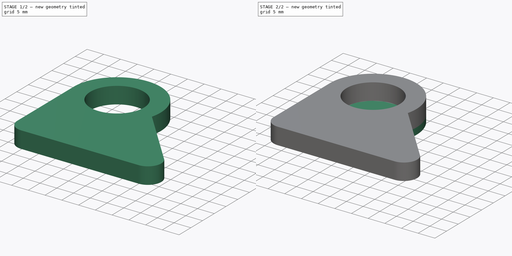
[diagram: build sequence overview — one tinted view per stage of 2, left to right]
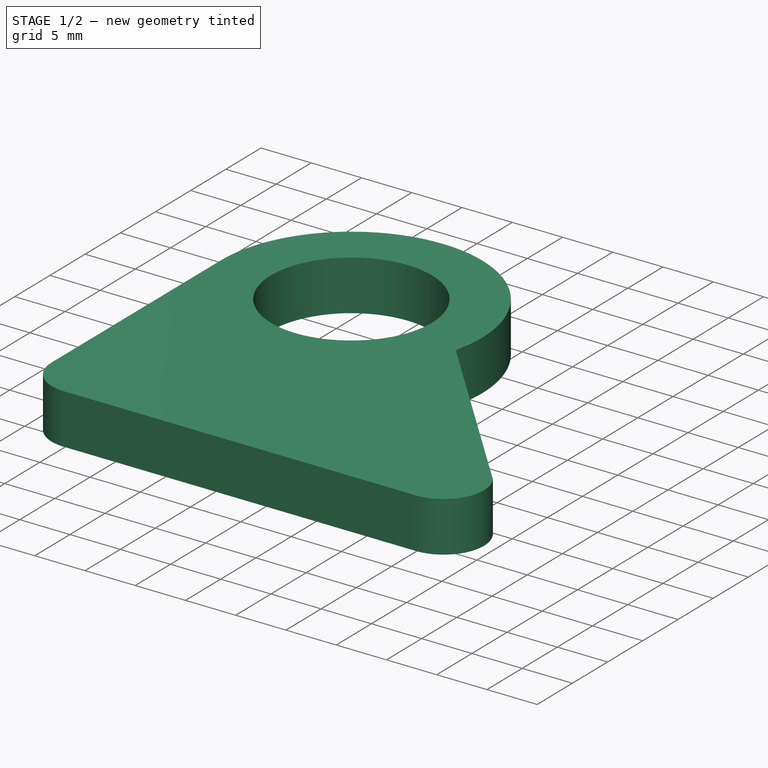
[diagram: stage 1 of 2 — iso view after this stage's code; geometry added in this stage tinted green]
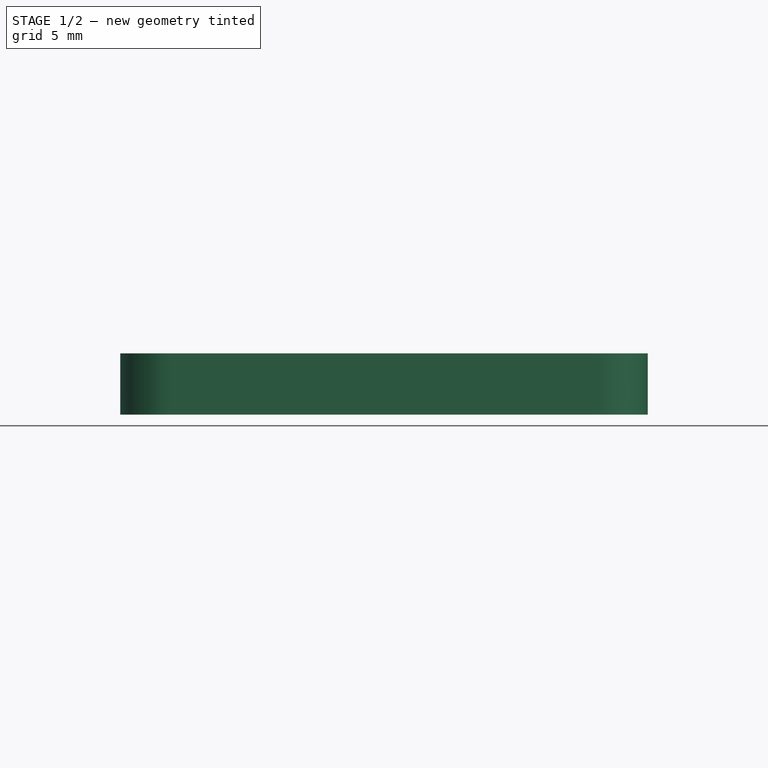
[diagram: stage 1 of 2 — front view after this stage's code; geometry added in this stage tinted green]
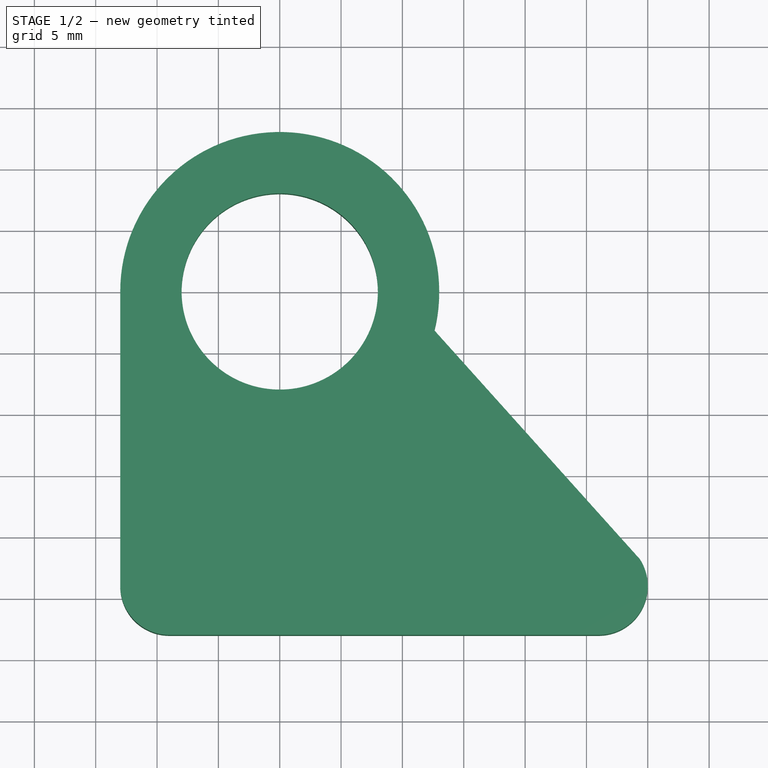
[diagram: stage 1 of 2 — top view after this stage's code; geometry added in this stage tinted green]
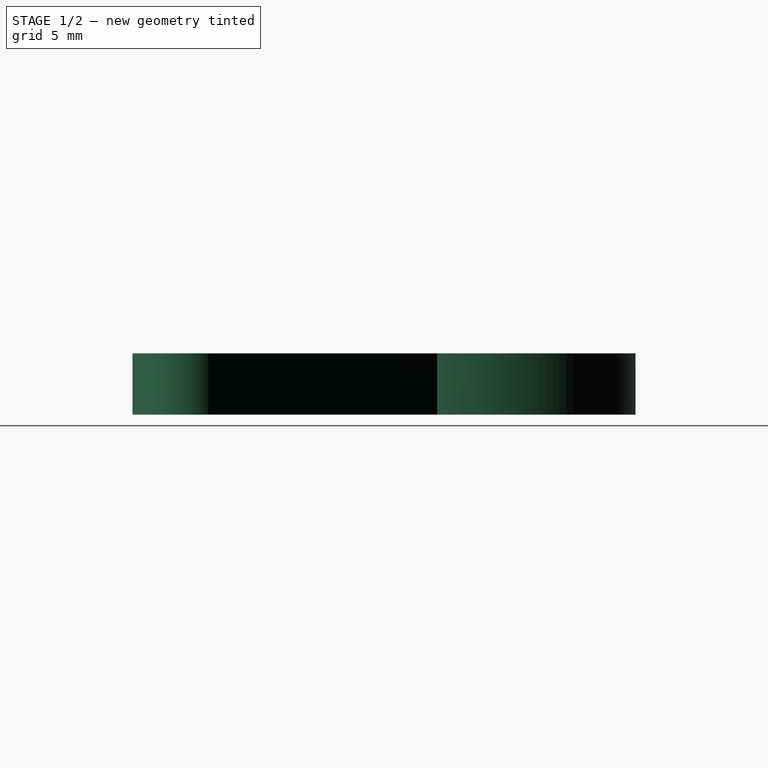
[diagram: stage 1 of 2 — right view after this stage's code; geometry added in this stage tinted green]
FCSTD DOCUMENT  (FreeCAD 0.19R24276 (Git))
Label: Gt2_roller_support
License: All rights reserved
LicenseURL: http://en.wikipedia.org/wiki/All_rights_reserved
objects: Sketcher::SketchObject×2, PartDesign::Pad×2, PartDesign::Body×1
note: 7 computed .brp shape members not serialized (recipe doc carries the construction recipe); baked Part::Feature solids carry a one-line shape summary decoded from their .brp

FEATURE [Sketcher::SketchObject] Sketch
  FullyConstrained = false
  MapMode = 5
  Support = -> [XY_Plane]
  sketch-geometry (12):
    g0: ArcOfCircle CenterX=0 CenterY=0 CenterZ=0 NormalX=0 NormalY=0 NormalZ=1 AngleXU=0 Radius=13 StartAngle=6.03658 EndAngle=9.42478
    g1: ArcOfCircle CenterX=26 CenterY=-24 CenterZ=0 NormalX=0 NormalY=0 NormalZ=1 AngleXU=0 Radius=4 StartAngle=4.71239 EndAngle=6.85854
    g2: ArcOfCircle CenterX=-9 CenterY=-24 CenterZ=0 NormalX=0 NormalY=0 NormalZ=1 AngleXU=0 Radius=4 StartAngle=3.14159 EndAngle=4.71239
    g3: LineSegment StartX=-9 StartY=-24 StartZ=0 EndX=26 EndY=-24 EndZ=0
    g4: LineSegment StartX=-9 StartY=-24 StartZ=0 EndX=-13 EndY=-24 EndZ=0
    g5: LineSegment StartX=-9 StartY=-24 StartZ=0 EndX=-9 EndY=-28 EndZ=0
    g6: LineSegment StartX=26 StartY=-24 StartZ=0 EndX=26 EndY=-28 EndZ=0
    g7: LineSegment StartX=-9 StartY=-28 StartZ=0 EndX=26 EndY=-28 EndZ=0
    g8: LineSegment StartX=26 StartY=-24 StartZ=0 EndX=29.356 EndY=-21.8235 EndZ=0
    g9: LineSegment StartX=29.356 StartY=-21.8235 StartZ=0 EndX=12.6067 EndY=-3.17348 EndZ=0
    g10: LineSegment StartX=-13 StartY=-24 StartZ=0 EndX=-13 EndY=3.6e-15 EndZ=0
    g11: Circle CenterX=0 CenterY=0 CenterZ=0 NormalX=0 NormalY=0 NormalZ=1 AngleXU=0 Radius=8
  constraints (29):
    c: Coincident(g0,g-1)
    c: Diameter(g0) = 26
    c: Horizontal(g3)
    c: Diameter(g2) = 8
    c: Diameter(g1) = 8
    c: DistanceX(g2,g1) = 35
    c: Horizontal(g4)
    c: Vertical(g5)
    c: Vertical(g6)
    c: Coincident(g7,g5)
    c: PointOnObject(g8,g1)
    c: Coincident(g9,g8)
    c: Coincident(g1,g6)
    c: PointOnObject(g1,g9)
    c: Coincident(g2,g7)
    c: Coincident(g2,g4)
    c: Coincident(g10,g2)
    c: DistanceY(g2,g0) = 28
    c: Coincident(g7,g1)
    c: Coincident(g5,g4)
    c: Coincident(g4,g3)
    c: Coincident(g2,g3)
    c: Coincident(g3,g8)
    c: Coincident(g6,g3)
    c: Coincident(g1,g3)
    c: Vertical(g10)
    c: Coincident(g0,g9)
    c: Coincident(g11,g0)
    c: Diameter(g11) = 16
FEATURE [PartDesign::Pad] Pad
  Direction = (1,1,1)
  Length = 5
  Length2 = 100
  Profile = -> Sketch
  Type = 0
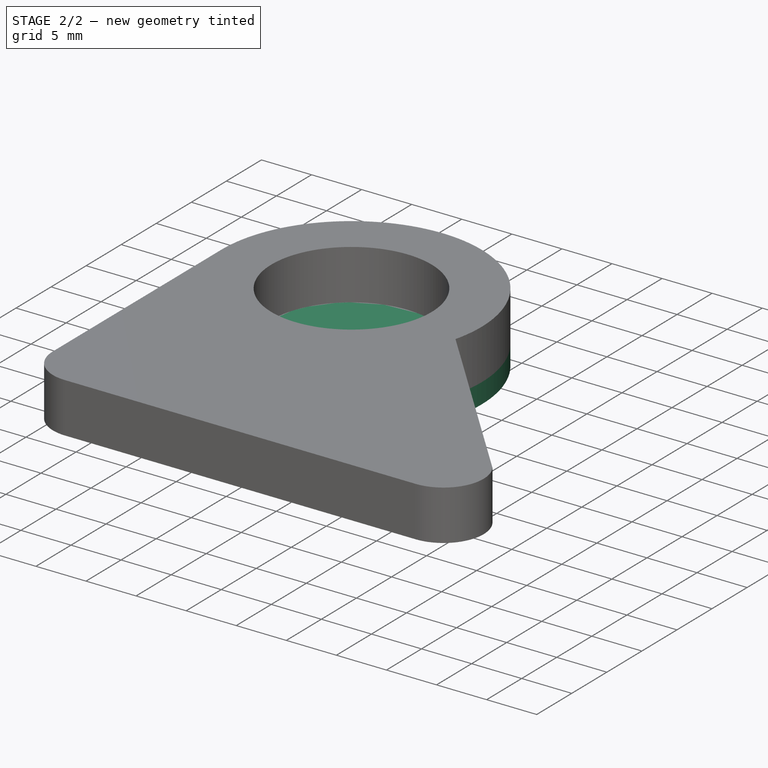
[diagram: stage 2 of 2 — iso view after this stage's code; geometry added in this stage tinted green]
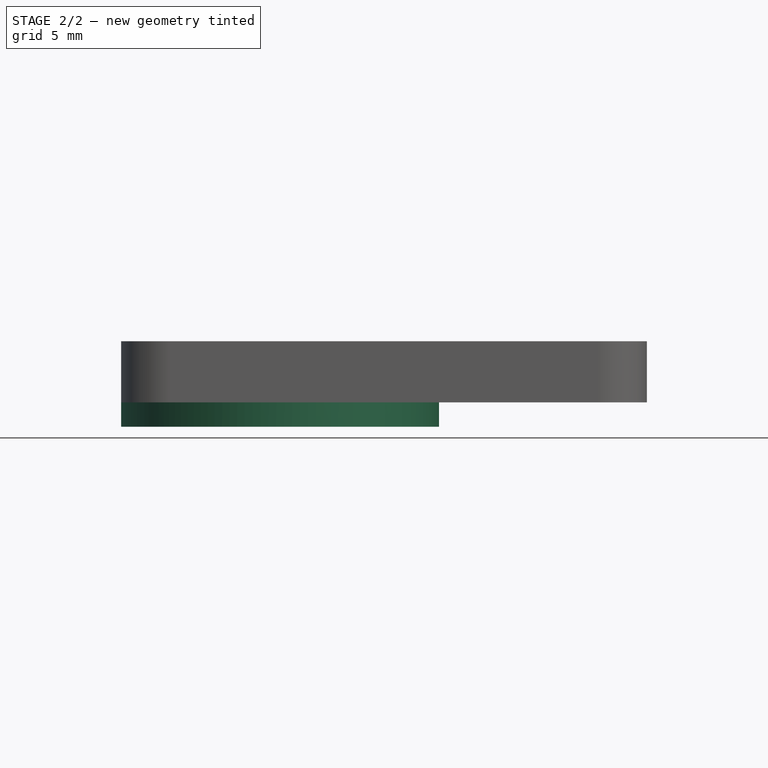
[diagram: stage 2 of 2 — front view after this stage's code; geometry added in this stage tinted green]
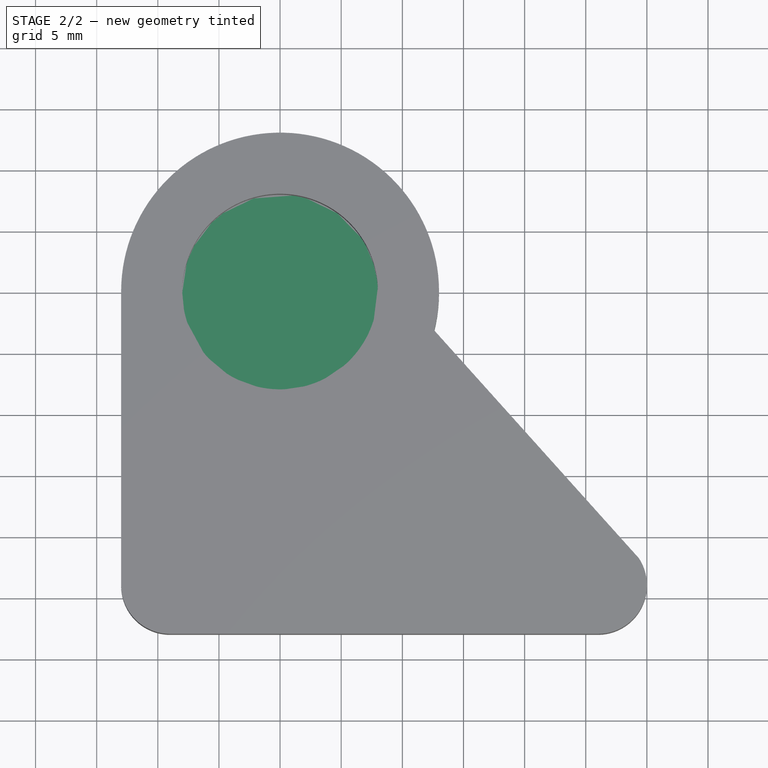
[diagram: stage 2 of 2 — top view after this stage's code; geometry added in this stage tinted green]
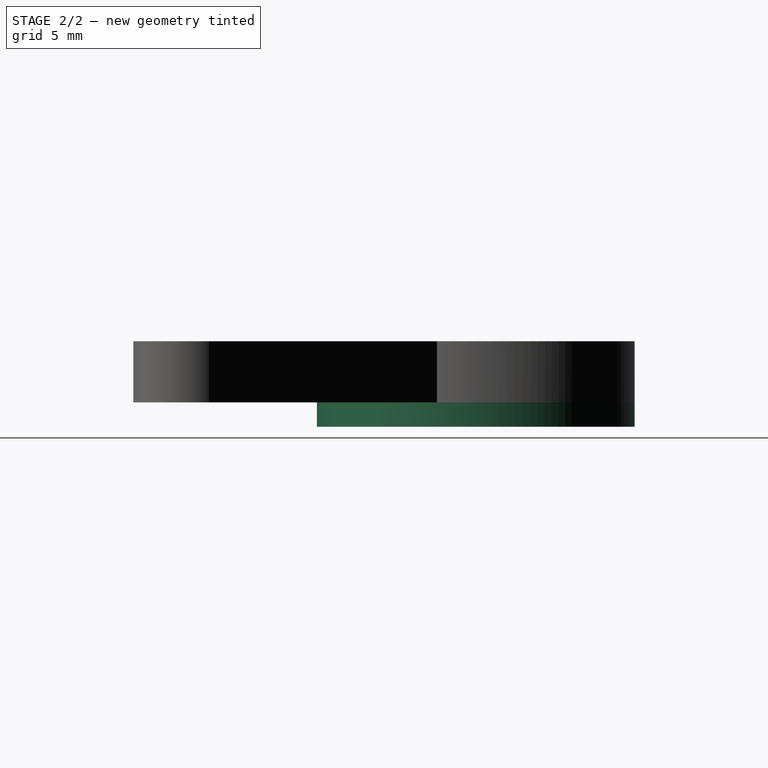
[diagram: stage 2 of 2 — right view after this stage's code; geometry added in this stage tinted green]
FEATURE [Sketcher::SketchObject] Sketch001
  FullyConstrained = true
  MapMode = 5
  Placement = pos=(0,0,0) rot=(1,0,0;3.14159rad)
  Support = -> [Pad]
  sketch-geometry (1):
    g0: Circle CenterX=0 CenterY=0 CenterZ=0 NormalX=0 NormalY=0 NormalZ=1 AngleXU=0 Radius=13
  constraints (2):
    c: Coincident(g0,g-1)
    c: Diameter(g0) = 26
FEATURE [PartDesign::Pad] Pad001
  BaseFeature = -> Pad
  Direction = (1,1,1)
  Length = 2
  Length2 = 100
  Profile = -> Sketch001
  Type = 0
FEATURE [PartDesign::Body] Body
  Group = -> [Sketch,Pad,Sketch001,Pad001]
  Origin = -> Origin
  Tip = -> Pad001
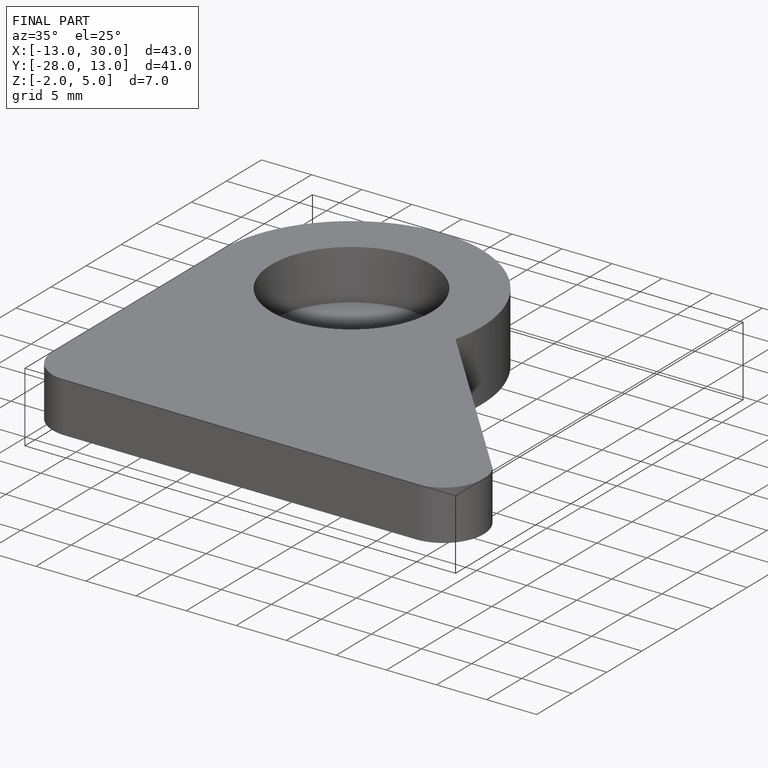
[diagram: finished part — iso view with bounding-box wireframe]
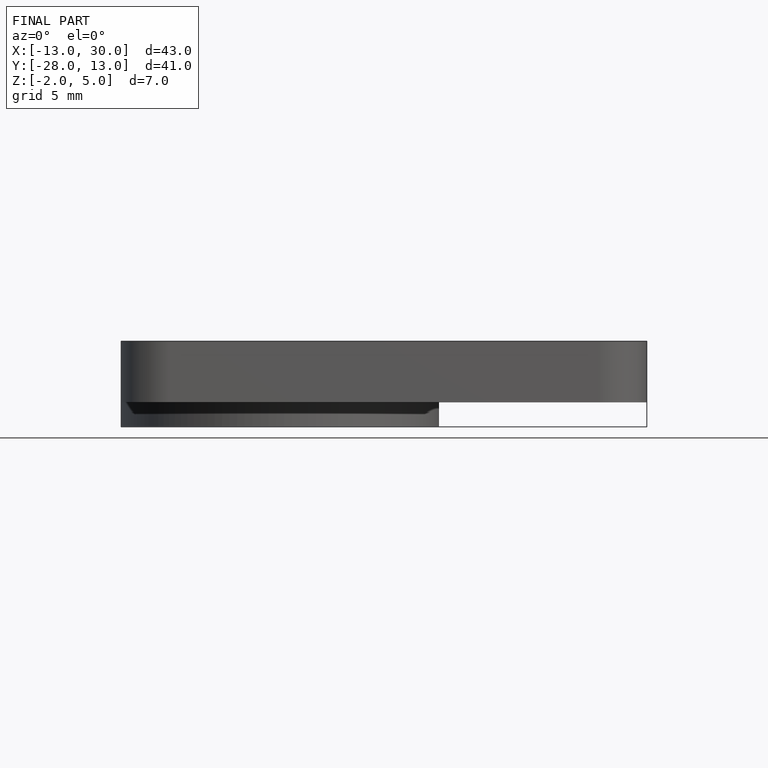
[diagram: finished part — front view with bounding-box wireframe]
